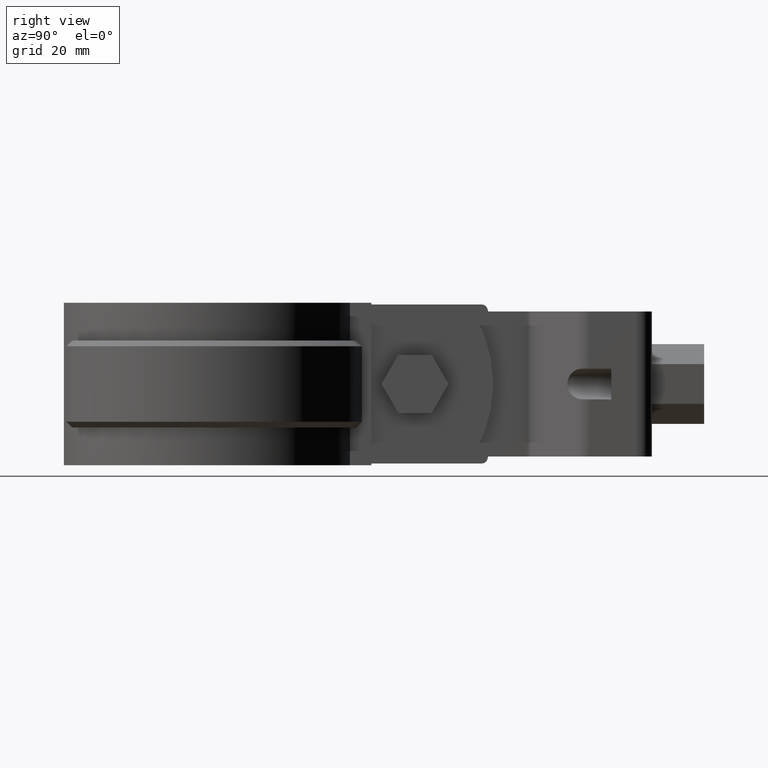
[diagram: clean part render]
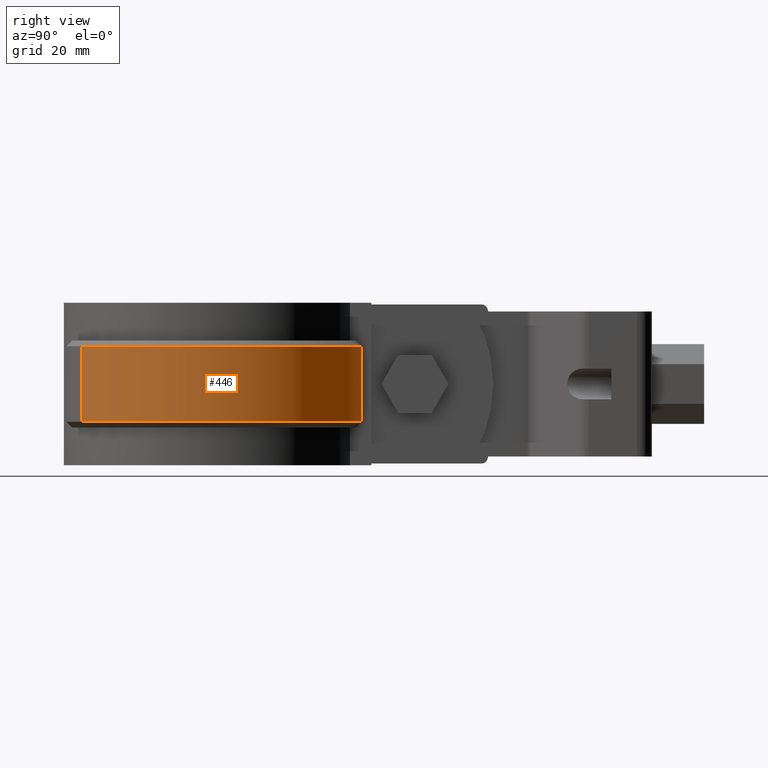
[diagram: same view with one face highlighted and labeled with its STEP entity id]
A machine part, right view. The second image highlights one B-rep face of the part: STEP entity #446.
In plain terms, the highlighted cylindrical surface (partial cylindrical patch) has radius 27.095 mm, axis along (0, 0, -1).
Its self-contained STEP definition (entity closure, byte-faithful):
#446 = ADVANCED_FACE( '', ( #868 ), #869, .T. );
#868 = FACE_OUTER_BOUND( '', #1961, .T. );
#869 = CYLINDRICAL_SURFACE( '', #1962, 27.0950000000000 );
#1961 = EDGE_LOOP( '', ( #3932, #3933, #3934, #3935 ) );
#1962 = AXIS2_PLACEMENT_3D( '', #3936, #3937, #3938 );
#3932 = ORIENTED_EDGE( '', *, *, #6395, .T. );
#3933 = ORIENTED_EDGE( '', *, *, #6423, .T. );
#3934 = ORIENTED_EDGE( '', *, *, #6424, .F. );
#3935 = ORIENTED_EDGE( '', *, *, #6421, .T. );
#3936 = CARTESIAN_POINT( '', ( 0.000000000000000, 3.46944695195361E-015, -20.0000000000000 ) );
#3937 = DIRECTION( '', ( 0.000000000000000, 0.000000000000000, -1.00000000000000 ) );
#3938 = DIRECTION( '', ( 0.209705966713379, 0.977764494919307, 0.000000000000000 ) );
#6395 = EDGE_CURVE( '', #7525, #7523, #7526, .T. );
#6421 = EDGE_CURVE( '', #7551, #7525, #7564, .T. );
#6423 = EDGE_CURVE( '', #7523, #7472, #7566, .F. );
#6424 = EDGE_CURVE( '', #7551, #7472, #7567, .T. );
#7472 = VERTEX_POINT( '', #10705 );
#7523 = VERTEX_POINT( '', #10779 );
#7525 = VERTEX_POINT( '', #10784 );
#7526 = LINE( '', #10785, #10786 );
#7551 = VERTEX_POINT( '', #10829 );
#7564 = CIRCLE( '', #10848, 27.0950000000000 );
#7566 = CIRCLE( '', #10850, 27.0950000000000 );
#7567 = LINE( '', #10851, #10852 );
#10705 = CARTESIAN_POINT( '', ( 15.8725259722264, -21.9590970729900, -6.00000000000000 ) );
#10779 = CARTESIAN_POINT( '', ( 6.09999999999997, 26.3994133457545, -6.00000000000000 ) );
#10784 = CARTESIAN_POINT( '', ( 6.09999999999997, 26.3994133457545, -19.0000000000000 ) );
#10785 = CARTESIAN_POINT( '', ( 6.09999999999997, 26.3994133457545, -20.0000000000000 ) );
#10786 = VECTOR( '', #12752, 1000.00000000000 );
#10829 = CARTESIAN_POINT( '', ( 15.8725259722264, -21.9590970729900, -19.0000000000000 ) );
#10848 = AXIS2_PLACEMENT_3D( '', #12789, #12790, #12791 );
#10850 = AXIS2_PLACEMENT_3D( '', #12795, #12796, #12797 );
#10851 = CARTESIAN_POINT( '', ( 15.8725259722264, -21.9590970729900, -20.0000000000000 ) );
#10852 = VECTOR( '', #12798, 1000.00000000000 );
#12752 = DIRECTION( '', ( 0.000000000000000, 0.000000000000000, 1.00000000000000 ) );
#12789 = CARTESIAN_POINT( '', ( 0.000000000000000, 3.46944695195361E-015, -19.0000000000000 ) );
#12790 = DIRECTION( '', ( 0.000000000000000, 0.000000000000000, 1.00000000000000 ) );
#12791 = DIRECTION( '', ( 1.00000000000000, 0.000000000000000, 0.000000000000000 ) );
#12795 = CARTESIAN_POINT( '', ( 0.000000000000000, 3.46944695195361E-015, -6.00000000000000 ) );
#12796 = DIRECTION( '', ( 0.000000000000000, 0.000000000000000, 1.00000000000000 ) );
#12797 = DIRECTION( '', ( 1.00000000000000, 0.000000000000000, 0.000000000000000 ) );
#12798 = DIRECTION( '', ( 0.000000000000000, 0.000000000000000, 1.00000000000000 ) );